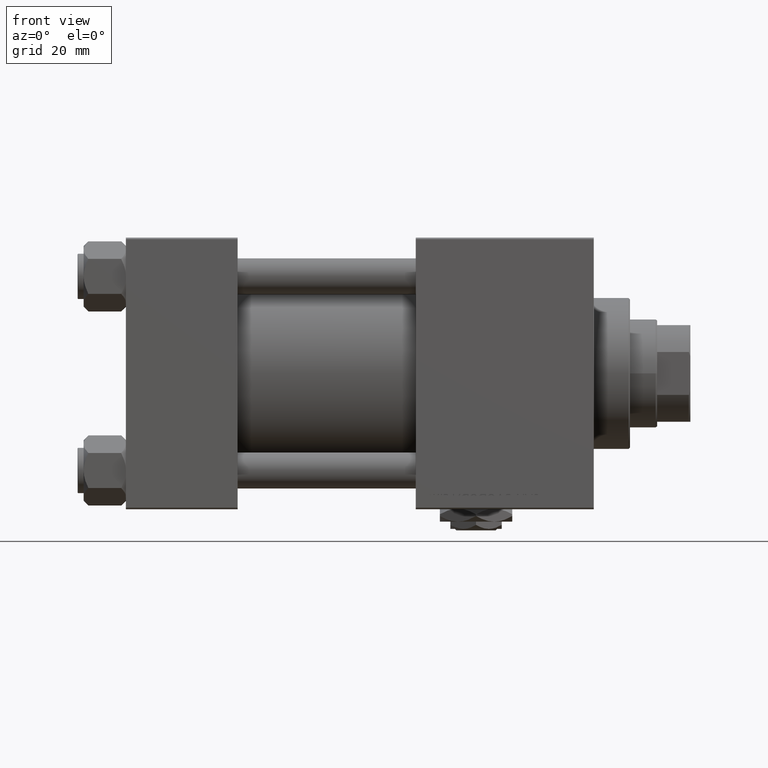
[diagram: clean part render]
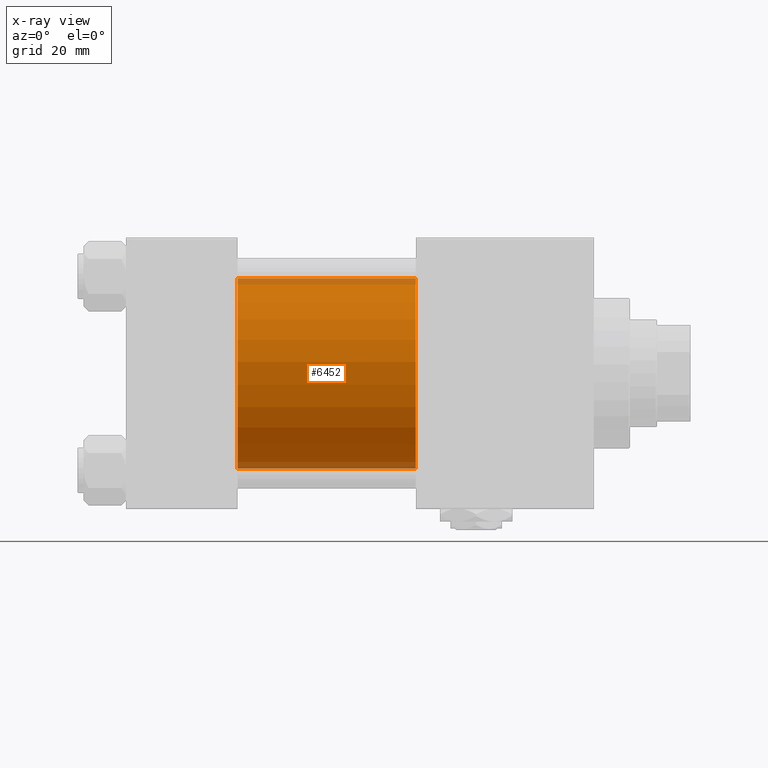
[diagram: x-ray — body ghosted, one internal face saturated and labeled with its STEP entity id]
A machine part, front view, then the same camera in x-ray: the body is ghosted and one INTERNAL B-rep face — a face not visible from any outside direction — is saturated and labeled: STEP entity #6452.
In plain terms, the highlighted cylindrical surface (partial cylindrical patch) has radius 31.5 mm, axis along (-1, -0, -0).
Its self-contained STEP definition (entity closure, byte-faithful):
#856 = VERTEX_POINT ( 'NONE', #21313 ) ;
#3423 = VECTOR ( 'NONE', #50284, 1000.000000000000000 ) ;
#6452 = ADVANCED_FACE ( 'NONE', ( #34740 ), #30797, .F. ) ;
#12855 = CARTESIAN_POINT ( 'NONE',  ( 96.00000000000000000, -2.602085213965210642E-15, 31.50000000000000000 ) ) ;
#14403 = DIRECTION ( 'NONE',  ( 1.000000000000000000, 0.000000000000000000, 0.000000000000000000 ) ) ;
#14930 = CARTESIAN_POINT ( 'NONE',  ( 37.00000000000000000, -2.602085213965210642E-15, 0.000000000000000000 ) ) ;
#15045 = CARTESIAN_POINT ( 'NONE',  ( 96.00000000000000000, -2.602085213965210642E-15, 0.000000000000000000 ) ) ;
#16162 = DIRECTION ( 'NONE',  ( 0.000000000000000000, 0.000000000000000000, -1.000000000000000000 ) ) ;
#16415 = CARTESIAN_POINT ( 'NONE',  ( 96.00000000000000000, -2.602085213965210642E-15, 0.000000000000000000 ) ) ;
#17733 = CARTESIAN_POINT ( 'NONE',  ( 96.00000000000000000, 1.255552203348951850E-15, -31.50000000000000000 ) ) ;
#18930 = EDGE_LOOP ( 'NONE', ( #37120, #35594, #50929, #23374 ) ) ;
#20028 = VERTEX_POINT ( 'NONE', #29763 ) ;
#21313 = CARTESIAN_POINT ( 'NONE',  ( 37.00000000000000000, -2.602085213965210642E-15, 31.50000000000000000 ) ) ;
#23027 = LINE ( 'NONE', #46924, #35178 ) ;
#23374 = ORIENTED_EDGE ( 'NONE', *, *, #45693, .F. ) ;
#29763 = CARTESIAN_POINT ( 'NONE',  ( 96.00000000000000000, 1.255552203348951850E-15, -31.50000000000000000 ) ) ;
#30074 = LINE ( 'NONE', #17733, #3423 ) ;
#30197 = VERTEX_POINT ( 'NONE', #33265 ) ;
#30688 = DIRECTION ( 'NONE',  ( 0.000000000000000000, 0.000000000000000000, -1.000000000000000000 ) ) ;
#30797 = CYLINDRICAL_SURFACE ( 'NONE', #48285, 31.50000000000000000 ) ;
#31415 = EDGE_CURVE ( 'NONE', #39850, #20028, #32275, .T. ) ;
#31589 = DIRECTION ( 'NONE',  ( -1.000000000000000000, -0.000000000000000000, -0.000000000000000000 ) ) ;
#32176 = DIRECTION ( 'NONE',  ( 1.000000000000000000, 0.000000000000000000, 0.000000000000000000 ) ) ;
#32275 = CIRCLE ( 'NONE', #38955, 31.50000000000000000 ) ;
#33265 = CARTESIAN_POINT ( 'NONE',  ( 37.00000000000000000, 1.255552203348951850E-15, -31.50000000000000000 ) ) ;
#34740 = FACE_OUTER_BOUND ( 'NONE', #18930, .T. ) ;
#35178 = VECTOR ( 'NONE', #51142, 1000.000000000000000 ) ;
#35594 = ORIENTED_EDGE ( 'NONE', *, *, #48897, .T. ) ;
#37120 = ORIENTED_EDGE ( 'NONE', *, *, #31415, .T. ) ;
#38955 = AXIS2_PLACEMENT_3D ( 'NONE', #16415, #32176, #16162 ) ;
#39503 = CIRCLE ( 'NONE', #43701, 31.50000000000000000 ) ;
#39850 = VERTEX_POINT ( 'NONE', #12855 ) ;
#43701 = AXIS2_PLACEMENT_3D ( 'NONE', #14930, #14403, #30688 ) ;
#45693 = EDGE_CURVE ( 'NONE', #39850, #856, #23027, .T. ) ;
#46803 = DIRECTION ( 'NONE',  ( 0.000000000000000000, 0.000000000000000000, 1.000000000000000000 ) ) ;
#46924 = CARTESIAN_POINT ( 'NONE',  ( 96.00000000000000000, -2.602085213965210642E-15, 31.50000000000000000 ) ) ;
#48285 = AXIS2_PLACEMENT_3D ( 'NONE', #15045, #31589, #46803 ) ;
#48897 = EDGE_CURVE ( 'NONE', #20028, #30197, #30074, .T. ) ;
#50284 = DIRECTION ( 'NONE',  ( -1.000000000000000000, -0.000000000000000000, -0.000000000000000000 ) ) ;
#50929 = ORIENTED_EDGE ( 'NONE', *, *, #51346, .F. ) ;
#51142 = DIRECTION ( 'NONE',  ( -1.000000000000000000, -0.000000000000000000, -0.000000000000000000 ) ) ;
#51346 = EDGE_CURVE ( 'NONE', #856, #30197, #39503, .T. ) ;